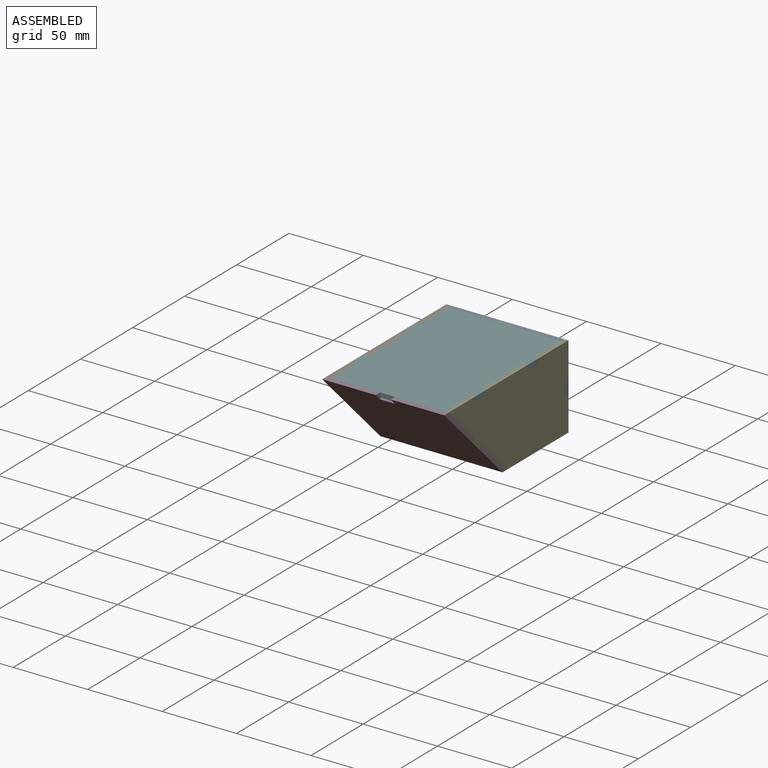
[diagram: assembled view]
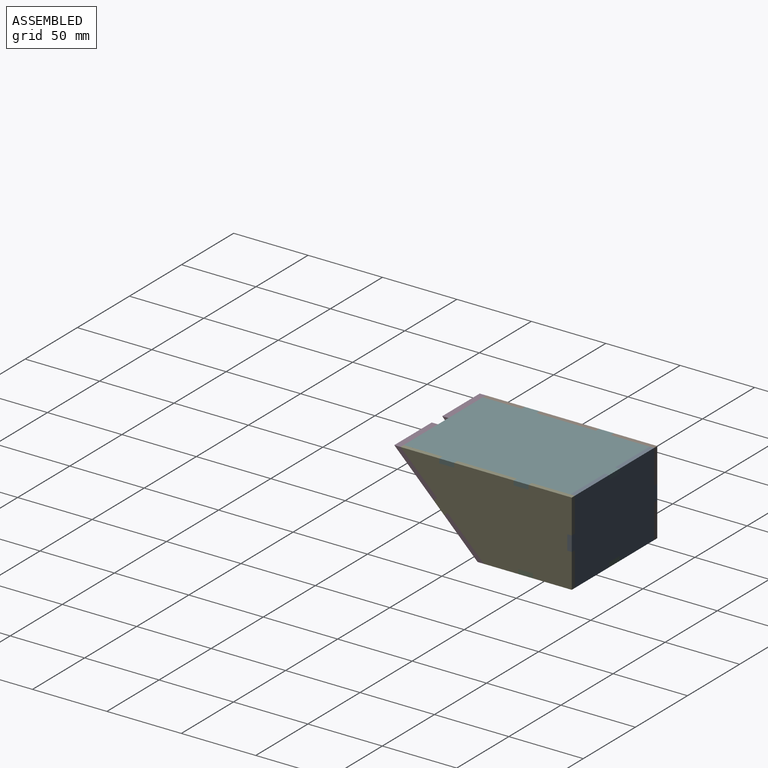
[diagram: assembled view, second angle]
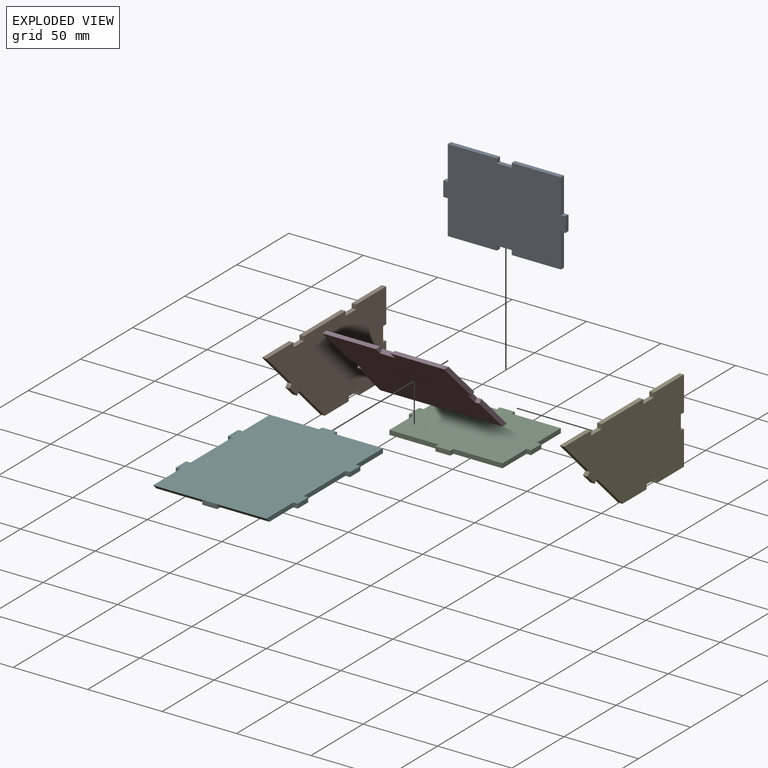
[diagram: exploded view]
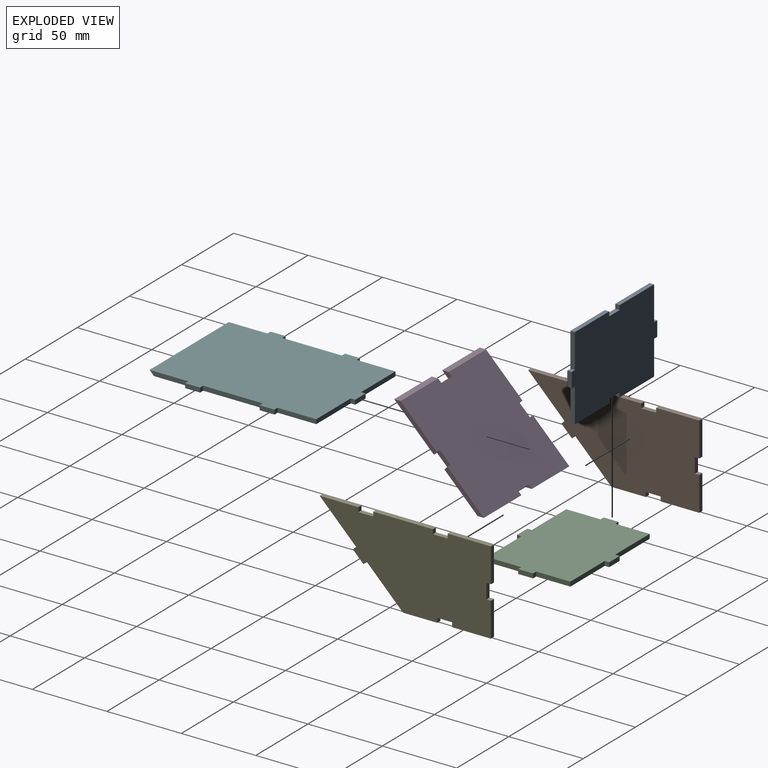
[diagram: exploded view, second angle]
ASSEMBLY  parts=6 mates=6
PART A: 22 faces, bbox 82x3x56 mm
  f0: plane 23x3mm, normal (-1,0,0), area 69mm2, adj f1,f19,f20,f21
  f1: plane 3x3mm, normal (0,0,1), area 9mm2, adj f0,f2,f20,f21
  f2: plane 10x3mm, normal (-1,0,0), area 30mm2, adj f1,f3,f20,f21
  f3: plane 3x3mm, normal (0,0,-1), area 9mm2, adj f2,f4,f20,f21
  f4: plane 23x3mm, normal (-1,0,0), area 69mm2, adj f3,f5,f20,f21
  f5: plane 33x3mm, normal (0,0,-1), area 99mm2, adj f4,f6,f20,f21
  f6: plane 3x3mm, normal (1,0,0), area 9mm2, adj f5,f7,f20,f21
  f7: plane 10x3mm, normal (0,0,-1), area 30mm2, adj f6,f8,f20,f21
  f8: plane 3x3mm, normal (-1,0,0), area 9mm2, adj f7,f9,f20,f21
  f9: plane 33x3mm, normal (0,0,-1), area 99mm2, adj f8,f10,f20,f21
  f10: plane 23x3mm, normal (1,0,0), area 69mm2, adj f9,f11,f20,f21
  f11: plane 3x3mm, normal (0,0,-1), area 9mm2, adj f10,f12,f20,f21
  f12: plane 10x3mm, normal (1,0,0), area 30mm2, adj f11,f13,f20,f21
  f13: plane 3x3mm, normal (0,0,1), area 9mm2, adj f12,f14,f20,f21
  f14: plane 23x3mm, normal (1,0,0), area 69mm2, adj f13,f15,f20,f21
  f15: plane 33x3mm, normal (0,0,1), area 99mm2, adj f14,f16,f20,f21
  f16: plane 3x3mm, normal (-1,0,0), area 9mm2, adj f15,f17,f20,f21
  f17: plane 10x3mm, normal (0,0,1), area 30mm2, adj f16,f18,f20,f21
  f18: plane 3x3mm, normal (1,0,0), area 9mm2, adj f17,f19,f20,f21
  f19: plane 33x3mm, normal (0,0,1), area 99mm2, adj f0,f18,f20,f21
  f20: plane 82x56mm, normal (0,-1,0), area 4256mm2, adj f0,f1,f2,f3,f4,f5,f6,f7
  f21: plane 82x56mm, normal (0,1,0), area 4256mm2, adj f0,f1,f2,f3,f4,f5,f6,f7
PART B: 26 faces, bbox 115x3x56 mm
  f0: plane 23x3mm, normal (0,0,-1), area 69mm2, adj f1,f23,f24,f25
  f1: plane 24.46x24.46mm, normal (0.71,0,-0.71), area 103.8mm2, adj f0,f2,f24,f25
  f2: plane 3x2.12mm, normal (-0.71,0,-0.71), area 9mm2, adj f1,f3,f24,f25
  f3: plane 7.07x7.07mm, normal (0.71,0,-0.71), area 30mm2, adj f2,f4,f24,f25
  f4: plane 3x2.12mm, normal (0.71,0,0.71), area 9mm2, adj f3,f5,f24,f25
  f5: plane 24.47x24.47mm, normal (0.71,0,-0.71), area 103.8mm2, adj f4,f6,f24,f25
  f6: plane 26x3mm, normal (0,0,1), area 78mm2, adj f5,f7,f24,f25
  f7: plane 3x3mm, normal (-1,0,0), area 9mm2, adj f6,f8,f24,f25
  f8: plane 10x3mm, normal (0,0,1), area 30mm2, adj f7,f9,f24,f25
  f9: plane 3x3mm, normal (1,0,0), area 9mm2, adj f8,f10,f24,f25
  f10: plane 40x3mm, normal (0,0,1), area 120mm2, adj f9,f11,f24,f25
  f11: plane 3x3mm, normal (-1,0,0), area 9mm2, adj f10,f12,f24,f25
  f12: plane 10x3mm, normal (0,0,1), area 30mm2, adj f11,f13,f24,f25
  f13: plane 3x3mm, normal (1,0,0), area 9mm2, adj f12,f14,f24,f25
  f14: plane 29x3mm, normal (0,0,1), area 87mm2, adj f13,f15,f24,f25
  f15: plane 23x3mm, normal (-1,0,0), area 69mm2, adj f14,f16,f24,f25
  f16: plane 3x3mm, normal (0,0,-1), area 9mm2, adj f15,f17,f24,f25
  f17: plane 10x3mm, normal (-1,0,0), area 30mm2, adj f16,f18,f24,f25
  f18: plane 3x3mm, normal (0,0,1), area 9mm2, adj f17,f19,f24,f25
  f19: plane 23x3mm, normal (-1,0,0), area 69mm2, adj f18,f20,f24,f25
  f20: plane 26x3mm, normal (0,0,-1), area 78mm2, adj f19,f21,f24,f25
  f21: plane 3x3mm, normal (1,0,0), area 9mm2, adj f20,f22,f24,f25
  f22: plane 10x3mm, normal (0,0,-1), area 30mm2, adj f21,f23,f24,f25
  f23: plane 3x3mm, normal (-1,0,0), area 9mm2, adj f0,f22,f24,f25
  f24: plane 115x56mm, normal (0,-1,0), area 4782mm2, adj f0,f1,f2,f3,f4,f5,f6,f7
  f25: plane 115x56mm, normal (0,1,0), area 4782mm2, adj f0,f1,f2,f3,f4,f5,f6,f7
PART C: 22 faces, bbox 82x3x62 mm
  f0: plane 33x3mm, normal (0,0,-1), area 99mm2, adj f1,f19,f20,f21
  f1: plane 23x3mm, normal (1,0,0), area 69mm2, adj f0,f2,f20,f21
  f2: plane 3x3mm, normal (0,0,-1), area 9mm2, adj f1,f3,f20,f21
  f3: plane 10x3mm, normal (1,0,0), area 30mm2, adj f2,f4,f20,f21
  f4: plane 3x3mm, normal (0,0,1), area 9mm2, adj f3,f5,f20,f21
  f5: plane 23x3mm, normal (1,0,0), area 69mm2, adj f4,f6,f20,f21
  f6: plane 33x3mm, normal (0,0,1), area 99mm2, adj f5,f7,f20,f21
  f7: plane 3x3mm, normal (1,0,0), area 9mm2, adj f6,f8,f20,f21
  f8: plane 10x3mm, normal (0,0,1), area 30mm2, adj f7,f9,f20,f21
  f9: plane 3x3mm, normal (-1,0,0), area 9mm2, adj f8,f10,f20,f21
  f10: plane 33x3mm, normal (0,0,1), area 99mm2, adj f9,f11,f20,f21
  f11: plane 23x3mm, normal (-1,0,0), area 69mm2, adj f10,f12,f20,f21
  f12: plane 3x3mm, normal (0,0,1), area 9mm2, adj f11,f13,f20,f21
  f13: plane 10x3mm, normal (-1,0,0), area 30mm2, adj f12,f14,f20,f21
  f14: plane 3x3mm, normal (0,0,-1), area 9mm2, adj f13,f15,f20,f21
  f15: plane 23x3mm, normal (-1,0,0), area 69mm2, adj f14,f16,f20,f21
  f16: plane 33x3mm, normal (0,0,-1), area 99mm2, adj f15,f17,f20,f21
  f17: plane 3x3mm, normal (-1,0,0), area 9mm2, adj f16,f18,f20,f21
  f18: plane 10x3mm, normal (0,0,-1), area 30mm2, adj f17,f19,f20,f21
  f19: plane 3x3mm, normal (1,0,0), area 9mm2, adj f0,f18,f20,f21
  f20: plane 82x62mm, normal (0,-1,0), area 4376mm2, adj f0,f1,f2,f3,f4,f5,f6,f7
  f21: plane 82x62mm, normal (0,1,0), area 4376mm2, adj f0,f1,f2,f3,f4,f5,f6,f7
PART D: 22 faces, bbox 82x3x82.2 mm
  f0: plane 34.59x3mm, normal (1,0,0), area 99.3mm2, adj f1,f5,f15,f19
  f1: plane 82x79.18mm, normal (0,-1,0), area 6372.8mm2, adj f0,f2,f3,f4,f6,f9,f10,f11
  f2: plane 6x3mm, normal (1,0,0), area 13.5mm2, adj f1,f5,f16,f21
  f3: plane 10x3mm, normal (1,0,0), area 30mm2, adj f1,f5,f13,f15
  f4: plane 10x3mm, normal (-1,0,0), area 30mm2, adj f1,f5,f12,f14
  f5: plane 82x79.18mm, normal (0,1,0), area 6372.8mm2, adj f0,f2,f3,f4,f6,f7,f8,f9
  f6: plane 6x3mm, normal (-1,0,0), area 13.5mm2, adj f1,f5,f16,f20
  f7: plane 3x3mm, normal (1,0,0), area 4.5mm2, adj f5,f17,f18
  f8: plane 3x3mm, normal (-1,0,0), area 4.5mm2, adj f5,f17,f19
  f9: plane 34.59x3mm, normal (-1,0,0), area 99.3mm2, adj f1,f5,f14,f18
  f10: plane 37.59x3mm, normal (1,0,0), area 108.3mm2, adj f1,f5,f13,f20
  f11: plane 37.59x3mm, normal (-1,0,0), area 108.3mm2, adj f1,f5,f12,f21
  f12: plane 3x3mm, normal (0,0,-1), area 9mm2, adj f1,f4,f5,f11
  f13: plane 3x3mm, normal (0,0,-1), area 9mm2, adj f1,f3,f5,f10
  f14: plane 3x3mm, normal (0,0,1), area 9mm2, adj f1,f4,f5,f9
  f15: plane 3x3mm, normal (0,0,1), area 9mm2, adj f0,f1,f3,f5
  f16: plane 10x3mm, normal (0,0,1), area 30mm2, adj f1,f2,f5,f6
  f17: plane 10x3mm, normal (0,0,-1), area 30mm2, adj f1,f5,f7,f8
  f18: plane 36x3mm, normal (0,-0.71,-0.71), area 152.7mm2, adj f1,f5,f7,f9
  f19: plane 36x3mm, normal (0,-0.71,-0.71), area 152.7mm2, adj f0,f1,f5,f8
  f20: plane 36x3mm, normal (0,0.71,0.71), area 152.7mm2, adj f1,f5,f6,f10
  f21: plane 36x3mm, normal (0,0.71,0.71), area 152.7mm2, adj f1,f2,f5,f11
PART E: same geometry as B
PART F: 30 faces, bbox 115x3x82 mm
  f0: plane 3x3mm, normal (0,0,1), area 4.5mm2, adj f25,f27,f29
  f1: plane 26x3mm, normal (0,0,-1), area 78mm2, adj f2,f24,f25,f26
  f2: plane 33x3mm, normal (1,0,0), area 99mm2, adj f1,f3,f25,f26
  f3: plane 3x3mm, normal (0,0,-1), area 9mm2, adj f2,f4,f25,f26
  f4: plane 10x3mm, normal (1,0,0), area 30mm2, adj f3,f5,f25,f26
  f5: plane 3x3mm, normal (0,0,1), area 9mm2, adj f4,f6,f25,f26
  f6: plane 33x3mm, normal (1,0,0), area 99mm2, adj f5,f7,f25,f26
  f7: plane 26x3mm, normal (0,0,1), area 78mm2, adj f6,f8,f25,f26
  f8: plane 3x3mm, normal (1,0,0), area 9mm2, adj f7,f9,f25,f26
  f9: plane 10x3mm, normal (0,0,1), area 30mm2, adj f8,f10,f25,f26
  f10: plane 3x3mm, normal (-1,0,0), area 9mm2, adj f9,f11,f25,f26
  f11: plane 40x3mm, normal (0,0,1), area 120mm2, adj f10,f12,f25,f26
  f12: plane 3x3mm, normal (1,0,0), area 9mm2, adj f11,f13,f25,f26
  f13: plane 10x3mm, normal (0,0,1), area 30mm2, adj f12,f14,f25,f26
  f14: plane 3x3mm, normal (-1,0,0), area 9mm2, adj f13,f15,f25,f26
  f15: plane 26x3mm, normal (0,0,1), area 73.5mm2, adj f14,f25,f26,f27
  f16: plane 3x3mm, normal (0,0,-1), area 4.5mm2, adj f25,f28,f29
  f17: plane 26x3mm, normal (0,0,-1), area 73.5mm2, adj f18,f25,f26,f28
  f18: plane 3x3mm, normal (-1,0,0), area 9mm2, adj f17,f19,f25,f26
  f19: plane 10x3mm, normal (0,0,-1), area 30mm2, adj f18,f20,f25,f26
  f20: plane 3x3mm, normal (1,0,0), area 9mm2, adj f19,f21,f25,f26
  f21: plane 40x3mm, normal (0,0,-1), area 120mm2, adj f20,f22,f25,f26
  f22: plane 3x3mm, normal (-1,0,0), area 9mm2, adj f21,f23,f25,f26
  f23: plane 10x3mm, normal (0,0,-1), area 30mm2, adj f22,f24,f25,f26
  f24: plane 3x3mm, normal (1,0,0), area 9mm2, adj f1,f23,f25,f26
  f25: plane 115x82mm, normal (0,-1,0), area 8464mm2, adj f0,f1,f2,f3,f4,f5,f6,f7
  f26: plane 115x82mm, normal (0,1,0), area 8662mm2, adj f1,f2,f3,f4,f5,f6,f7,f8
  f27: plane 33x3mm, normal (-0.71,-0.71,0), area 140mm2, adj f0,f15,f25,f26
  f28: plane 33x3mm, normal (-0.71,-0.71,0), area 140mm2, adj f16,f17,f25,f26
  f29: plane 10x3mm, normal (-1,0,0), area 30mm2, adj f0,f16,f25,f26
PLACE A rot(axis=(-0.74,-0.42,0.53),0deg) t=(-13.25,21.66,23.96)mm
PLACE B rot(axis=(0,0,-1),90deg) t=(-51.25,-35.84,23.96)mm
PLACE C rot(axis=(-1,0,0),90deg) t=(-13.25,-9.34,-4.04)mm fixed
PLACE D rot(axis=(1,0,0),45deg) t=(-13.25,-63.22,21.84)mm
PLACE E rot(axis=(0,0,-1),90deg) t=(27.75,-35.84,23.96)mm
PLACE F rot(axis=(0.58,0.58,0.58),120deg) t=(-13.25,-37.34,51.96)mm
MATE fastened F.f6 <-> A.f20  axis (0,1,0) through (8.25,18.66,51.96)mm
MATE fastened C.f1 <-> E.f24  axis (1,0,0) through (24.75,-25.84,-4.04)mm
MATE fastened B.f25 <-> C.f15  axis (1,0,0) through (-51.25,-25.84,-4.04)mm
MATE planar C.f20 <-> A.f7  axis (0,0,1) through (-13.25,21.66,-1.04)mm
MATE fastened A.f20 <-> C.f6  axis (0,-1,0) through (8.25,18.66,-4.04)mm
MATE fastened B.f4 <-> D.f12  axis (0,-0.71,0.71) through (-54.25,-69.93,26.43)mm
